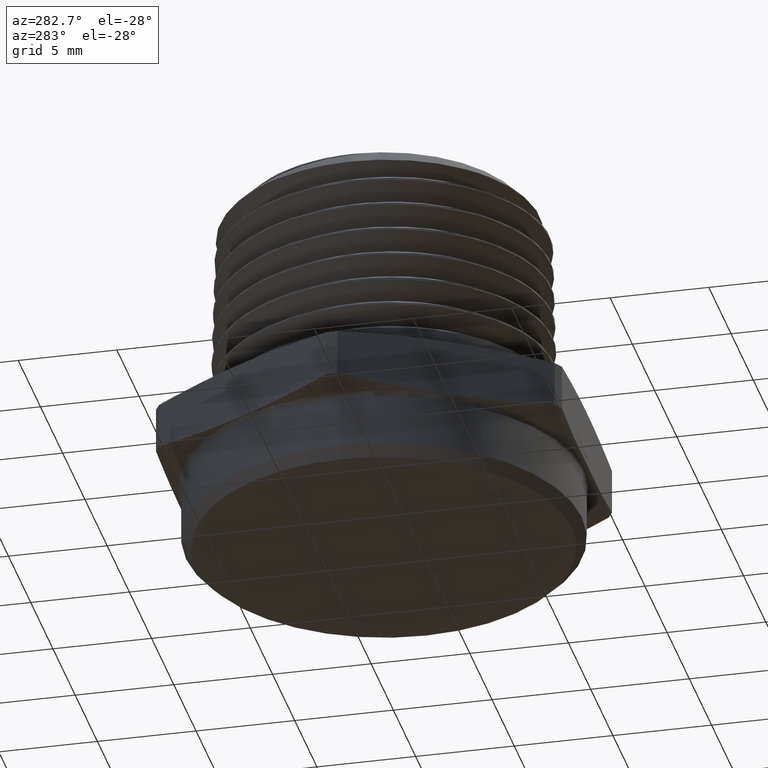
[diagram: clean part render]
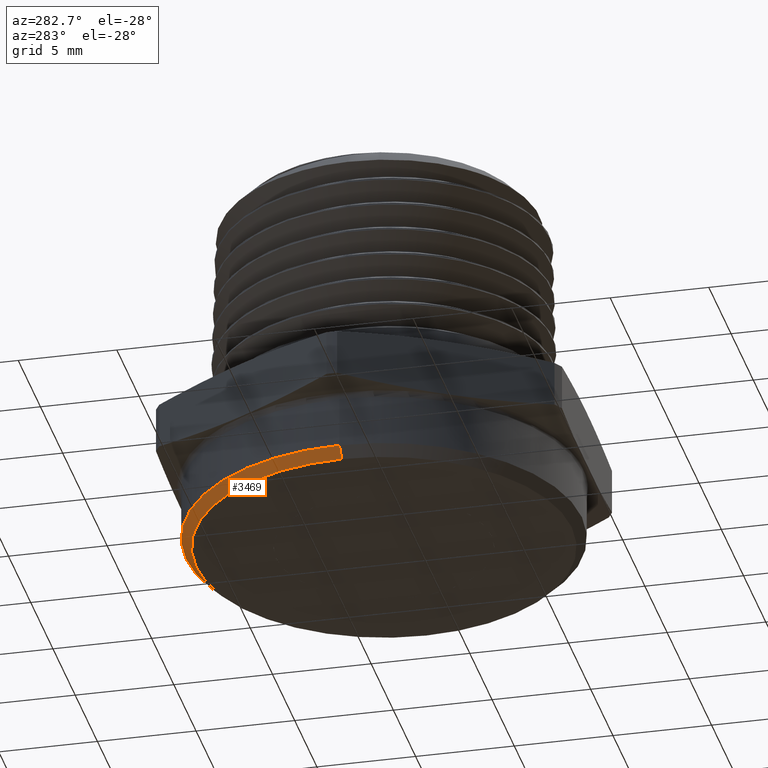
[diagram: same view with one face highlighted and labeled with its STEP entity id]
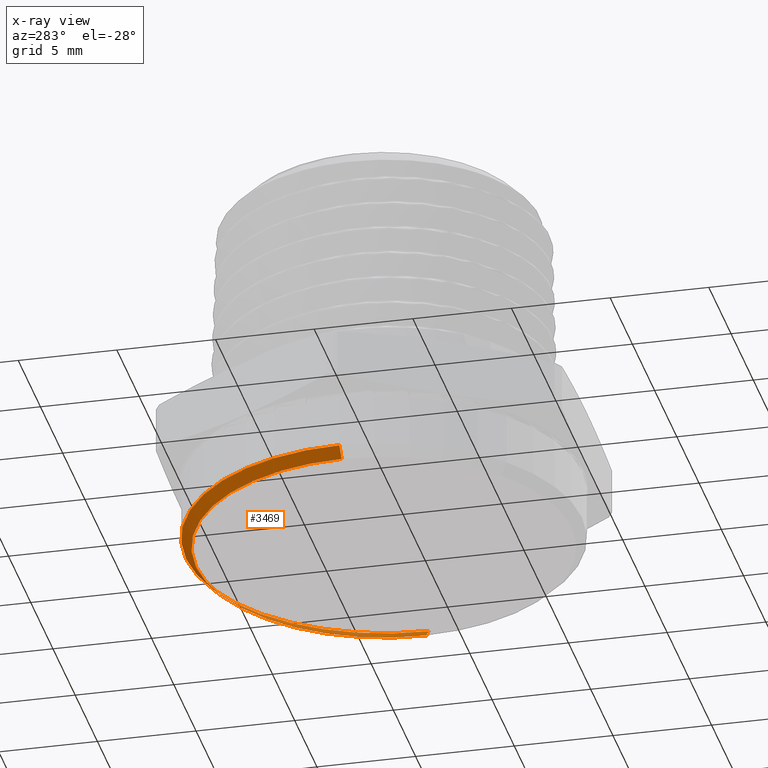
[diagram: x-ray of the same camera — body ghosted, the highlighted face saturated]
A machine part, auxiliary view. The second image highlights one B-rep face of the part: STEP entity #3469.
The next image is the same camera in x-ray: the body ghosted, the highlighted face saturated — about 0% of this face is hidden behind the body in this view.
In plain terms, the highlighted conical surface has half-angle 45 deg.
Its self-contained STEP definition (entity closure, byte-faithful):
#1883 = CARTESIAN_POINT ( 'NONE',  ( -0.3750000000000008300, 4.592425496802585300E-017, -0.1300000000000000000 ) ) ;
#1884 = DIRECTION ( 'NONE',  ( -0.7071067811865474600, 8.659560562354932900E-017, 0.7071067811865474600 ) ) ;
#1888 = CARTESIAN_POINT ( 'NONE',  ( 0.0000000000000000000, 0.0000000000000000000, -0.1300000000000000000 ) ) ;
#1889 = DIRECTION ( 'NONE',  ( 0.0000000000000000000, 0.0000000000000000000, -1.000000000000000000 ) ) ;
#1890 = DIRECTION ( 'NONE',  ( -1.000000000000000000, 0.0000000000000000000, 0.0000000000000000000 ) ) ;
#1894 = CARTESIAN_POINT ( 'NONE',  ( 0.3750000000000008300, 0.0000000000000000000, -0.1300000000000000000 ) ) ;
#1901 = DIRECTION ( 'NONE',  ( 0.7071067811865474600, 0.0000000000000000000, 0.7071067811865474600 ) ) ;
#1906 = CARTESIAN_POINT ( 'NONE',  ( 0.0000000000000000000, 0.0000000000000000000, -0.1100000000000007500 ) ) ;
#1907 = DIRECTION ( 'NONE',  ( 0.0000000000000000000, 0.0000000000000000000, 1.000000000000000000 ) ) ;
#1908 = DIRECTION ( 'NONE',  ( -1.000000000000000000, 0.0000000000000000000, 0.0000000000000000000 ) ) ;
#2893 = CARTESIAN_POINT ( 'NONE',  ( 0.3750000000000008300, 0.0000000000000000000, -0.1300000000000000000 ) ) ;
#2929 = CARTESIAN_POINT ( 'NONE',  ( -0.3750000000000008300, 4.714890176717315400E-017, -0.1300000000000000000 ) ) ;
#2941 = CARTESIAN_POINT ( 'NONE',  ( 0.3950000000000000700, 0.0000000000000000000, -0.1100000000000007500 ) ) ;
#2945 = CARTESIAN_POINT ( 'NONE',  ( -0.3950000000000000700, 4.837354856632045600E-017, -0.1100000000000007500 ) ) ;
#3469 = ADVANCED_FACE ( 'NONE', ( #4484 ), #4490, .T. ) ;
#3547 = AXIS2_PLACEMENT_3D ( 'NONE', #1888, #1889, #1890 ) ;
#3552 = AXIS2_PLACEMENT_3D ( 'NONE', #1906, #1907, #1908 ) ;
#4018 = AXIS2_PLACEMENT_3D ( 'NONE', #4112, #4113, #4110 ) ;
#4037 = EDGE_CURVE ( 'NONE', #4439, #4401, #4626, .T. ) ;
#4038 = EDGE_CURVE ( 'NONE', #4439, #4455, #4628, .T. ) ;
#4043 = EDGE_CURVE ( 'NONE', #4451, #4455, #4633, .T. ) ;
#4044 = EDGE_CURVE ( 'NONE', #4401, #4451, #4635, .T. ) ;
#4110 = DIRECTION ( 'NONE',  ( 1.000000000000000000, 0.0000000000000000000, 0.0000000000000000000 ) ) ;
#4112 = CARTESIAN_POINT ( 'NONE',  ( 0.0000000000000000000, 0.0000000000000000000, -0.1300000000000000000 ) ) ;
#4113 = DIRECTION ( 'NONE',  ( 0.0000000000000000000, 0.0000000000000000000, 1.000000000000000000 ) ) ;
#4219 = ORIENTED_EDGE ( 'NONE', *, *, #4037, .F. ) ;
#4220 = ORIENTED_EDGE ( 'NONE', *, *, #4038, .T. ) ;
#4221 = ORIENTED_EDGE ( 'NONE', *, *, #4043, .F. ) ;
#4222 = ORIENTED_EDGE ( 'NONE', *, *, #4044, .F. ) ;
#4401 = VERTEX_POINT ( 'NONE', #2893 ) ;
#4439 = VERTEX_POINT ( 'NONE', #2929 ) ;
#4451 = VERTEX_POINT ( 'NONE', #2941 ) ;
#4455 = VERTEX_POINT ( 'NONE', #2945 ) ;
#4484 = FACE_OUTER_BOUND ( 'NONE', #5212, .T. ) ;
#4490 = CONICAL_SURFACE ( 'NONE', #4018, 0.3750000000000008300, 0.7853981633974482800 ) ;
#4626 = CIRCLE ( 'NONE', #3547, 0.3750000000000008300 ) ;
#4628 = LINE ( 'NONE', #1883, #4630 ) ;
#4630 = VECTOR ( 'NONE', #1884, 39.37007874015748900 ) ;
#4633 = CIRCLE ( 'NONE', #3552, 0.3950000000000000700 ) ;
#4635 = LINE ( 'NONE', #1894, #4637 ) ;
#4637 = VECTOR ( 'NONE', #1901, 39.37007874015748900 ) ;
#5212 = EDGE_LOOP ( 'NONE', ( #4219, #4220, #4221, #4222 ) ) ;